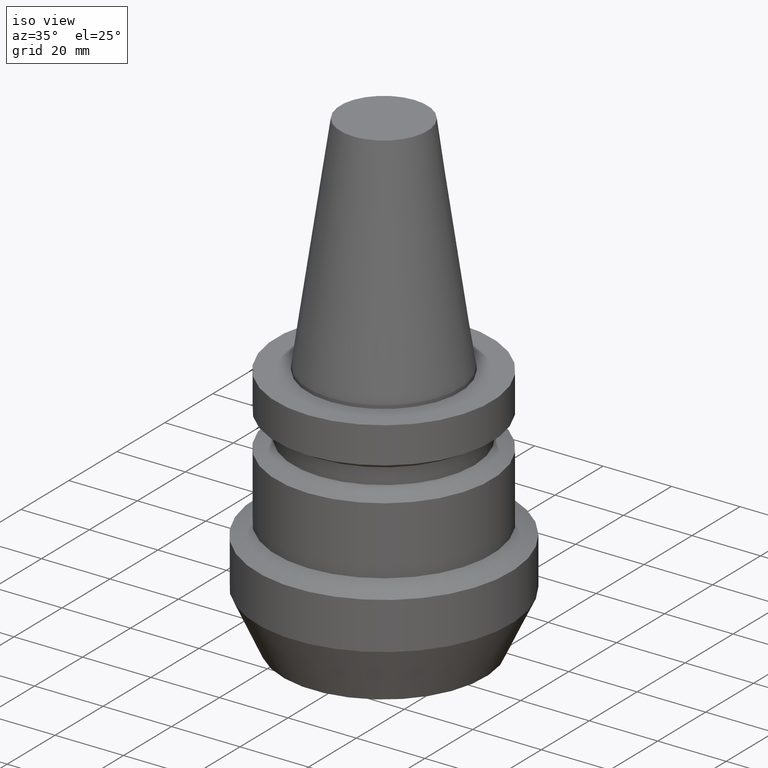
[diagram: clean part render]
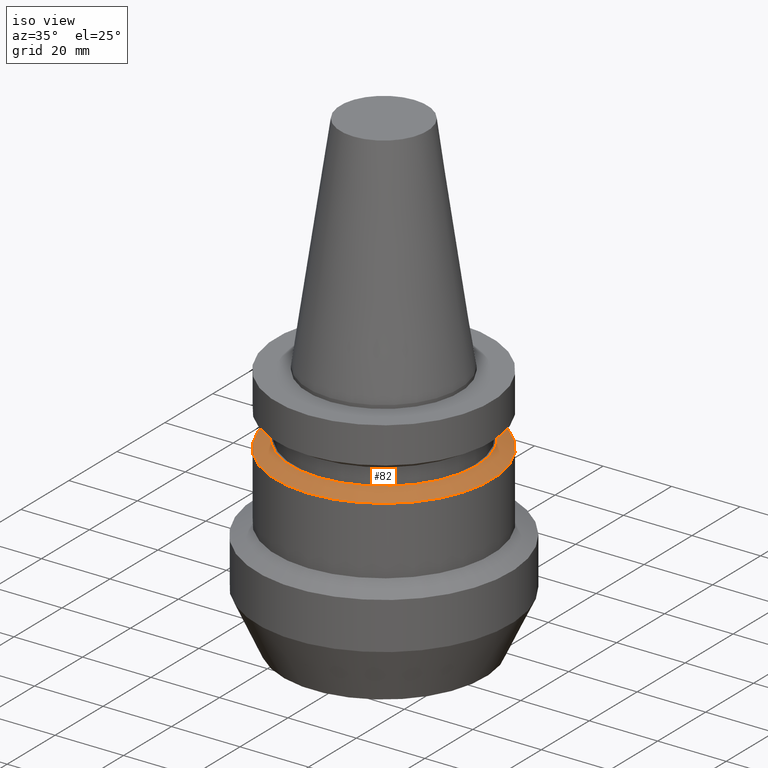
[diagram: same view with one face highlighted and labeled with its STEP entity id]
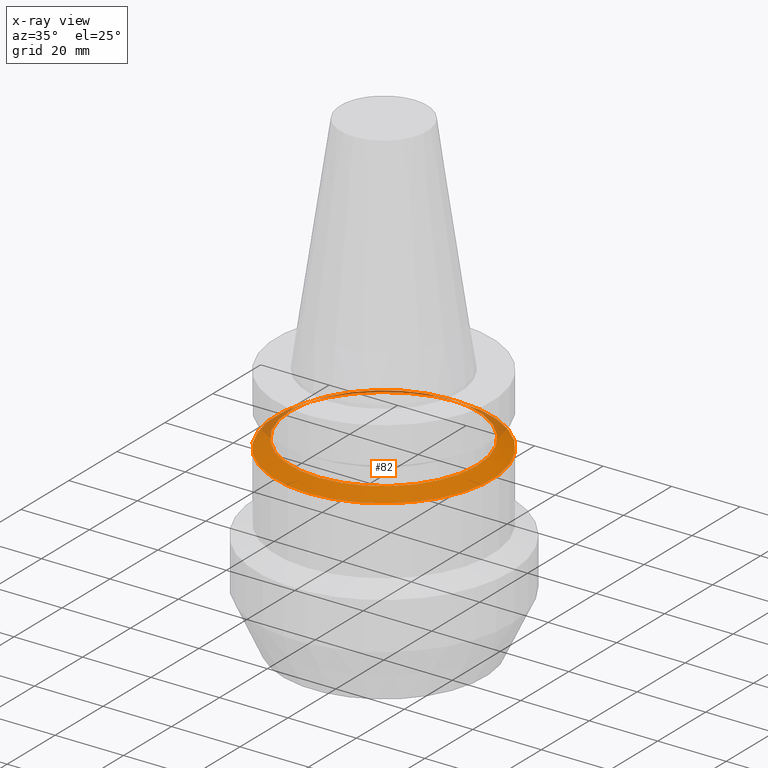
[diagram: x-ray of the same camera — body ghosted, the highlighted face saturated]
A machine part, iso view. The second image highlights one B-rep face of the part: STEP entity #82.
The next image is the same camera in x-ray: the body ghosted, the highlighted face saturated — about 11% of this face is hidden behind the body in this view.
In plain terms, the highlighted conical surface has half-angle 60 deg.
Its self-contained STEP definition (entity closure, byte-faithful):
#82=ADVANCED_FACE('',(#113,#114),#115,.T.);
#113=FACE_BOUND('',#162,.T.);
#114=FACE_BOUND('',#163,.T.);
#115=CONICAL_SURFACE('',#164,29.3350635094626,1.04719755119645);
#162=EDGE_LOOP('',(#225));
#163=EDGE_LOOP('',(#226));
#164=AXIS2_PLACEMENT_3D('',#227,#228,#229);
#225=ORIENTED_EDGE('',*,*,#281,.F.);
#226=ORIENTED_EDGE('',*,*,#280,.T.);
#227=CARTESIAN_POINT('',(1.24610014771821E-015,4.62880711586487E-016,-20.3503597704382));
#228=DIRECTION('',(6.12323399573677E-017,2.27455787911072E-017,-1.0));
#229=DIRECTION('',(-6.21991774383532E-033,1.0,2.27455787911072E-017));
#280=EDGE_CURVE('',#302,#302,#303,.T.);
#281=EDGE_CURVE('',#304,#304,#305,.T.);
#302=VERTEX_POINT('',#334);
#303=CIRCLE('',#335,31.5000000000015);
#304=VERTEX_POINT('',#336);
#305=CIRCLE('',#337,27.1701270189238);
#334=CARTESIAN_POINT('',(1.32263608222749E-015,31.5000000000015,-21.6002864360297));
#335=AXIS2_PLACEMENT_3D('',#372,#373,#374);
#336=CARTESIAN_POINT('',(1.16956421320893E-015,27.1701270189238,-19.1004331048467));
#337=AXIS2_PLACEMENT_3D('',#375,#376,#377);
#372=CARTESIAN_POINT('',(1.32263608222749E-015,4.91311017041841E-016,-21.6002864360297));
#373=DIRECTION('',(-6.12323399573677E-017,-2.27455787910982E-017,1.0));
#374=DIRECTION('',(-6.21991774383735E-033,1.0,2.27455787910982E-017));
#375=CARTESIAN_POINT('',(1.16956421320894E-015,4.34450406131132E-016,-19.1004331048467));
#376=DIRECTION('',(-6.12323399573677E-017,-2.27455787911175E-017,1.0));
#377=DIRECTION('',(-6.21991774383296E-033,1.0,2.27455787911175E-017));